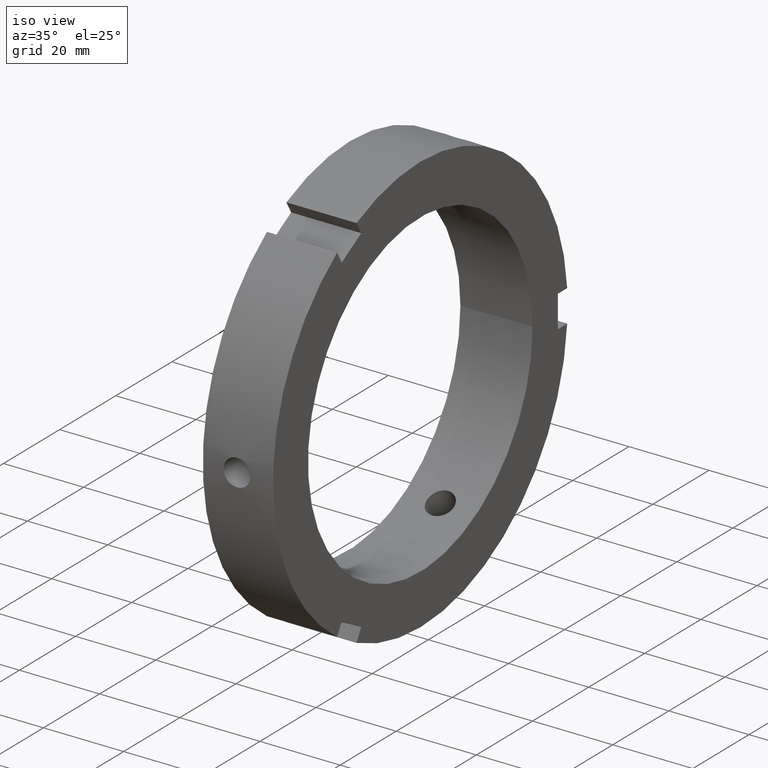
[diagram: clean part render]
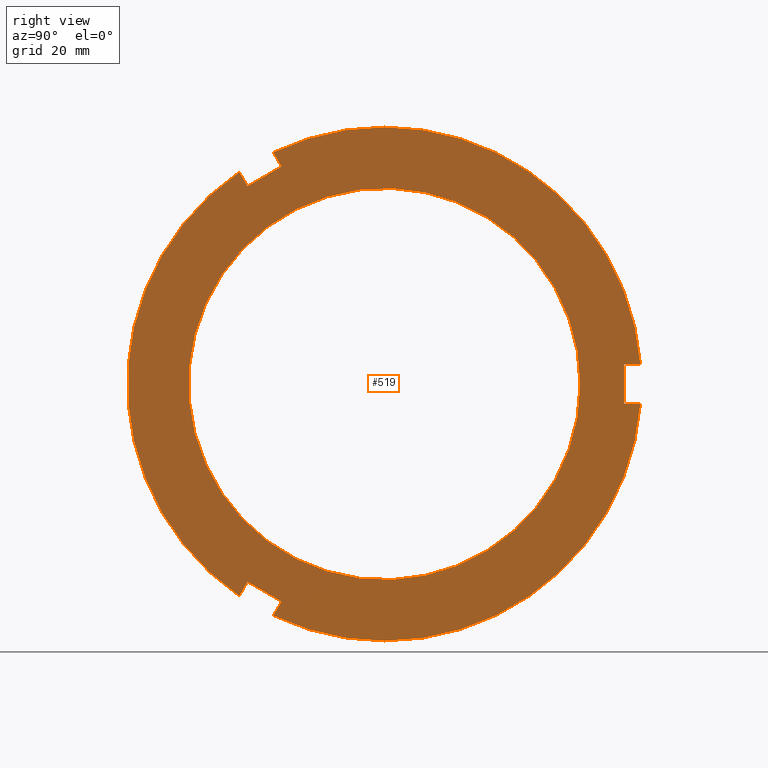
[diagram: tour spotlight — one face highlighted and labeled with its STEP entity id]
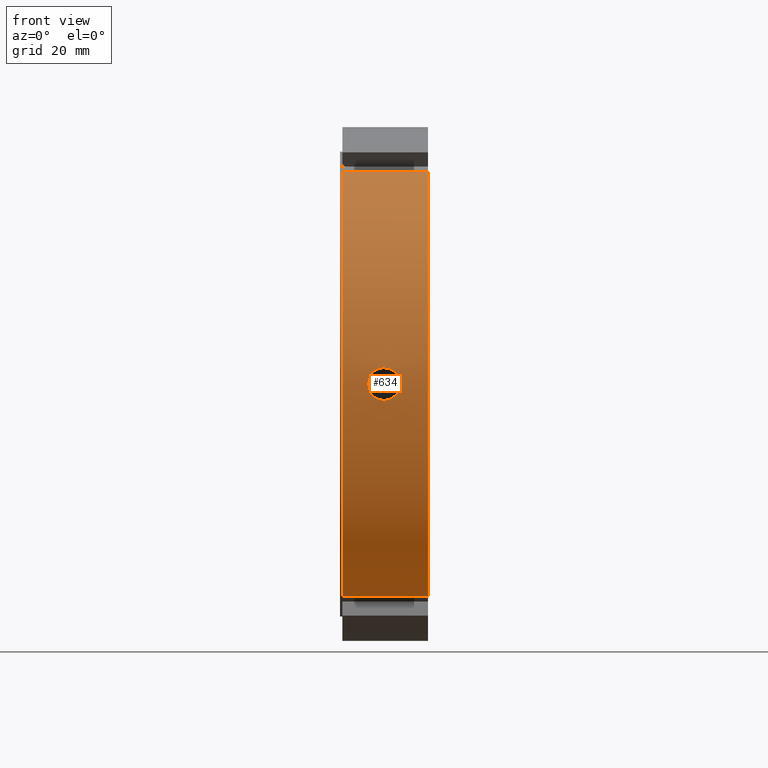
[diagram: tour spotlight — one face highlighted and labeled with its STEP entity id]
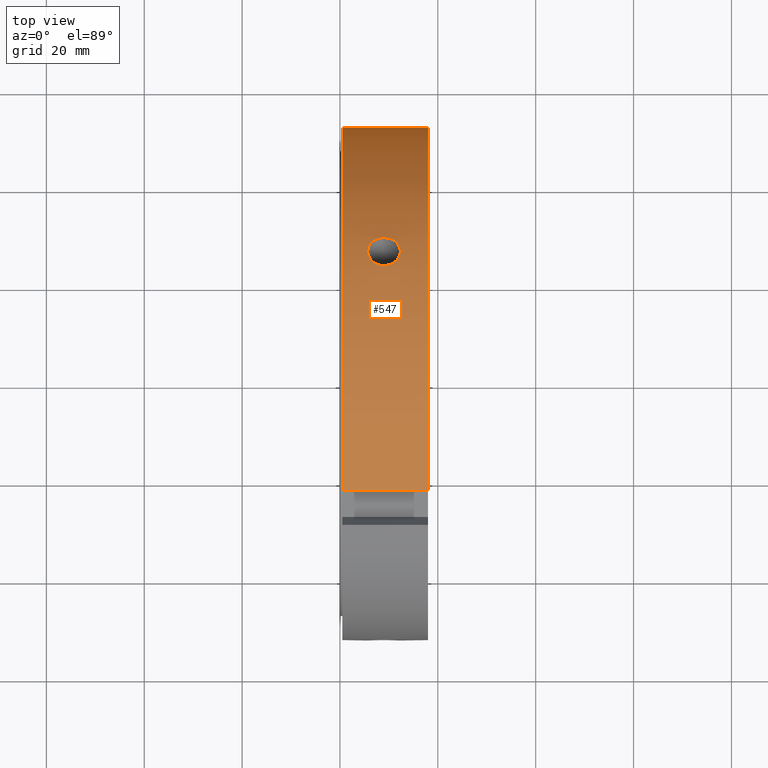
[diagram: tour spotlight — one face highlighted and labeled with its STEP entity id]
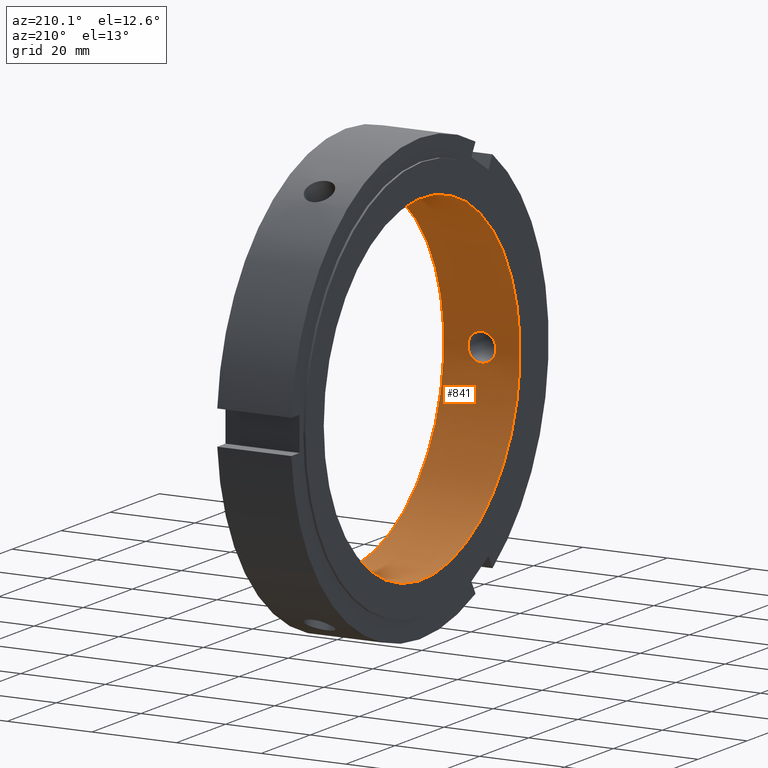
[diagram: tour spotlight — one face highlighted and labeled with its STEP entity id]
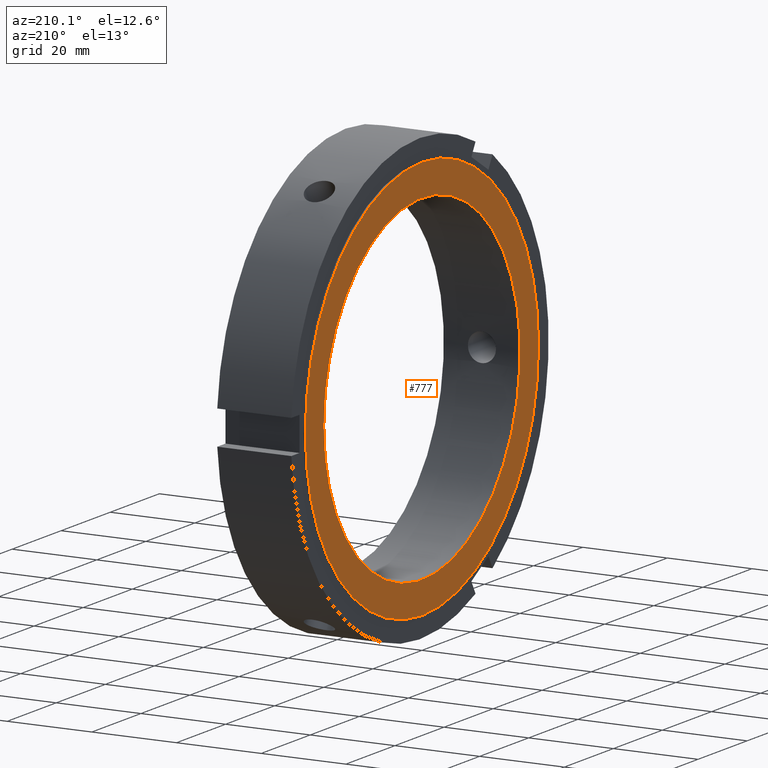
[diagram: tour spotlight — one face highlighted and labeled with its STEP entity id]
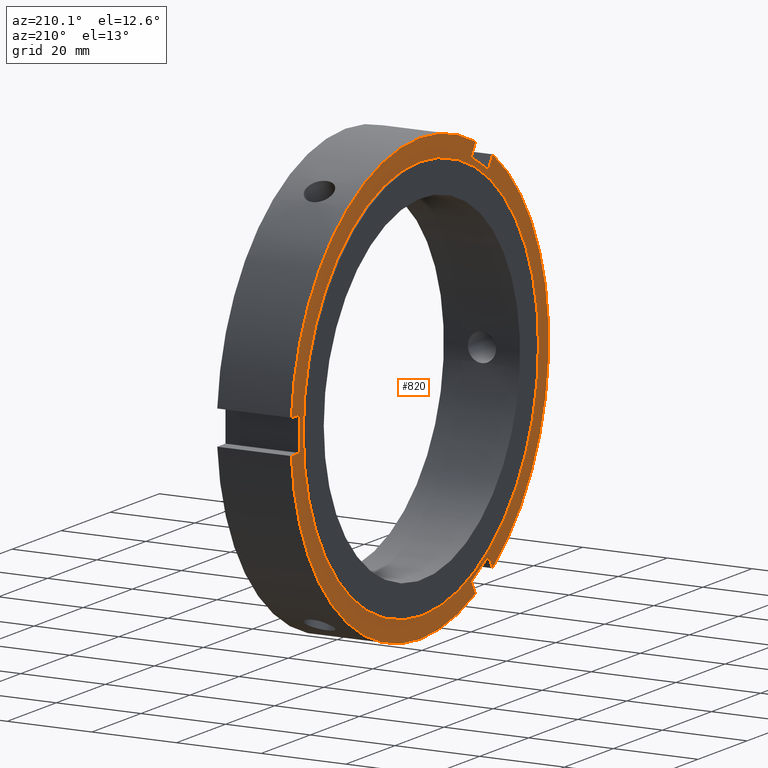
[diagram: tour spotlight — one face highlighted and labeled with its STEP entity id]
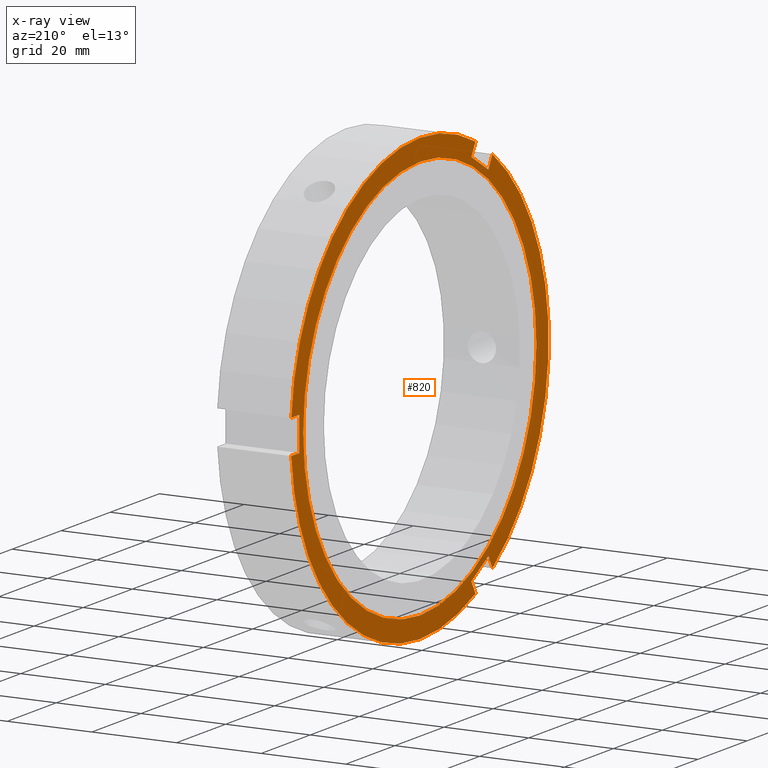
[diagram: x-ray of the same camera — body ghosted, this tour face saturated]
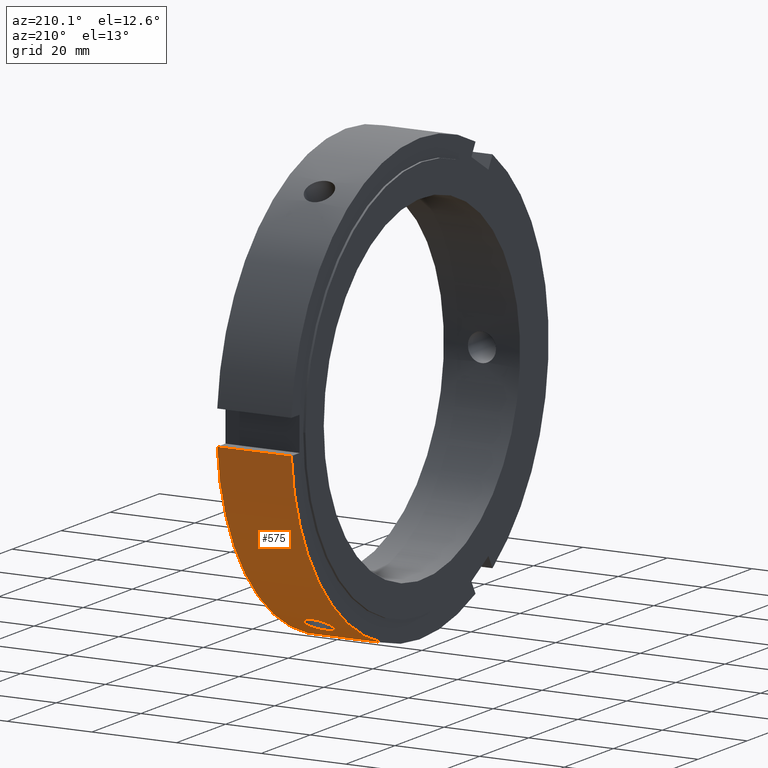
[diagram: tour spotlight — one face highlighted and labeled with its STEP entity id]
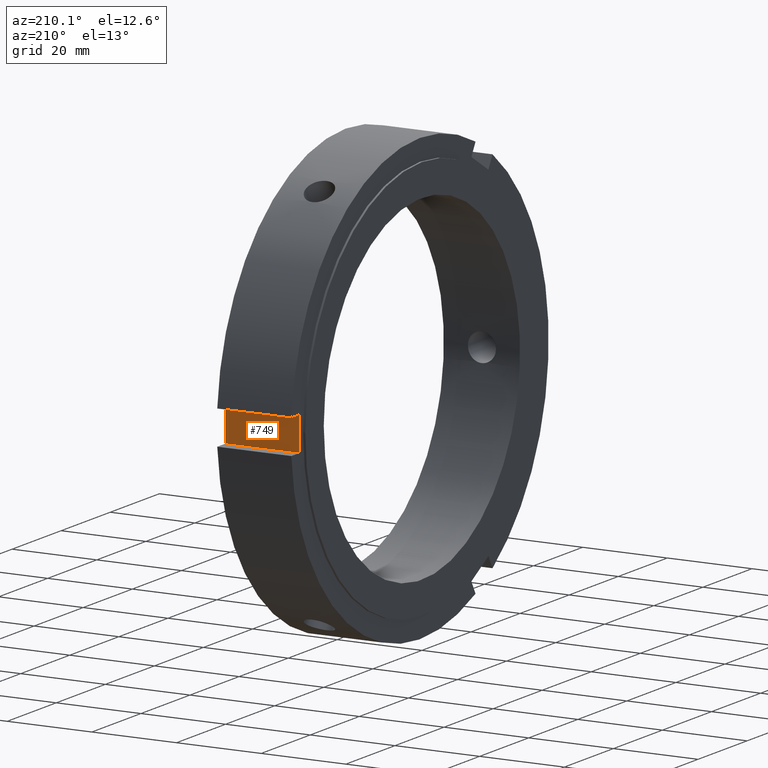
[diagram: tour spotlight — one face highlighted and labeled with its STEP entity id]
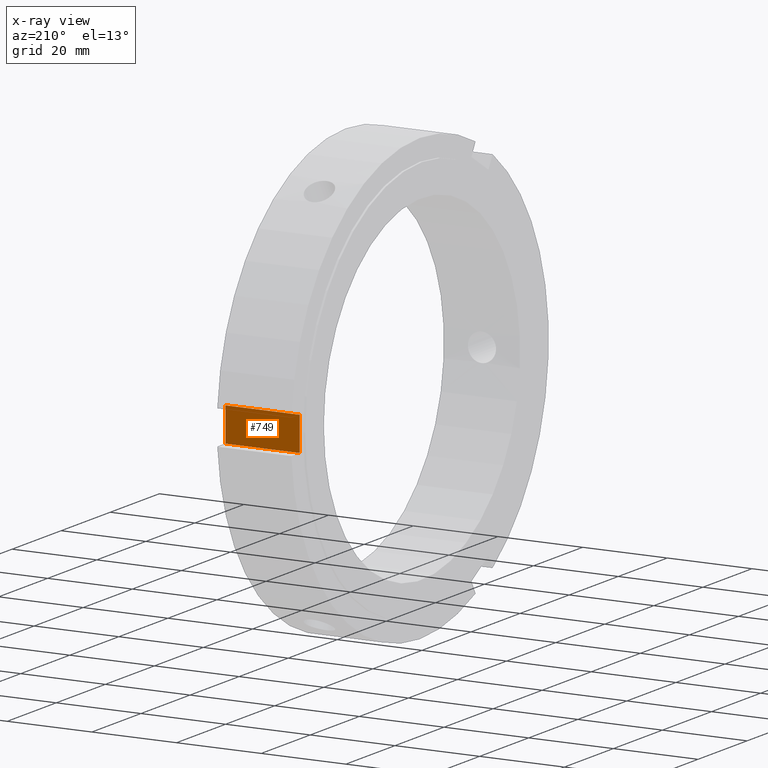
[diagram: x-ray of the same camera — body ghosted, this tour face saturated]
A machine part: a face-by-face anatomy tour. The part has 20 B-rep faces; the first image is the clean iso view, then the 8 largest visible faces are spotlighted one at a time (largest first), each with its STEP entity span.

Face 1 — right view, entity #519. In plain terms, the highlighted planar face has unit normal (1, 0, 0).
Definition (entity closure, byte-faithful):
#83=CARTESIAN_POINT('',(17.999999999999989,-27.964101615137778,-40.435244785437483));
#84=VERTEX_POINT('',#83);
#91=CARTESIAN_POINT('',(17.999999999999989,-29.637800245633240,-43.334175850014070));
#92=VERTEX_POINT('',#91);
#93=CARTESIAN_POINT('',(17.999999999999989,-29.637800245633240,-43.334175850014077));
#94=DIRECTION('',(0.0,0.500000000000000,0.866025403784439));
#95=VECTOR('',#94,3.347397260990930);
#96=LINE('',#93,#95);
#97=EDGE_CURVE('',#92,#84,#96,.T.);
#123=CARTESIAN_POINT('',(17.999999999999989,-22.709597015357733,-47.334175850014063));
#124=VERTEX_POINT('',#123);
#131=CARTESIAN_POINT('',(17.999999999999989,-21.035898384862264,-44.435244785437490));
#132=VERTEX_POINT('',#131);
#133=CARTESIAN_POINT('',(17.999999999999989,-21.035898384862275,-44.435244785437490));
#134=DIRECTION('',(0.0,-0.500000000000001,-0.866025403784438));
#135=VECTOR('',#134,3.347397260990924);
#136=LINE('',#133,#135);
#137=EDGE_CURVE('',#132,#124,#136,.T.);
#160=CARTESIAN_POINT('',(17.999999999999989,-27.964101615137793,-40.435244785437490));
#161=DIRECTION('',(0.0,0.866025403784438,-0.500000000000000));
#162=VECTOR('',#161,8.000000000000007);
#163=LINE('',#160,#162);
#164=EDGE_CURVE('',#84,#132,#163,.T.);
#273=CARTESIAN_POINT('',(17.999999999999989,-21.035898384862239,44.435244785437504));
#274=VERTEX_POINT('',#273);
#281=CARTESIAN_POINT('',(17.999999999999989,-22.709597015357698,47.334175850014091));
#282=VERTEX_POINT('',#281);
#283=CARTESIAN_POINT('',(17.999999999999989,-22.709597015357701,47.334175850014105));
#284=DIRECTION('',(0.0,0.499999999999999,-0.866025403784439));
#285=VECTOR('',#284,3.347397260990936);
#286=LINE('',#283,#285);
#287=EDGE_CURVE('',#282,#274,#286,.T.);
#313=CARTESIAN_POINT('',(17.999999999999989,-29.637800245633205,43.334175850014091));
#314=VERTEX_POINT('',#313);
#321=CARTESIAN_POINT('',(17.999999999999989,-27.964101615137746,40.435244785437504));
#322=VERTEX_POINT('',#321);
#323=CARTESIAN_POINT('',(17.999999999999989,-27.964101615137750,40.435244785437511));
#324=DIRECTION('',(0.0,-0.500000000000000,0.866025403784438));
#325=VECTOR('',#324,3.347397260990914);
#326=LINE('',#323,#325);
#327=EDGE_CURVE('',#322,#314,#326,.T.);
#350=CARTESIAN_POINT('',(17.999999999999989,-21.035898384862243,44.435244785437497));
#351=DIRECTION('',(0.0,-0.866025403784439,-0.499999999999999));
#352=VECTOR('',#351,7.999999999999995);
#353=LINE('',#350,#352);
#354=EDGE_CURVE('',#274,#322,#353,.T.);
#448=CARTESIAN_POINT('',(17.999999999999989,46.250000000000000,0.0));
#449=DIRECTION('',(1.0,0.0,0.0));
#450=DIRECTION('',(0.0,0.0,-1.0));
#451=AXIS2_PLACEMENT_3D('',#448,#449,#450);
#452=PLANE('',#451);
#453=ORIENTED_EDGE('',*,*,#97,.T.);
#454=ORIENTED_EDGE('',*,*,#164,.T.);
#455=ORIENTED_EDGE('',*,*,#137,.T.);
#456=CARTESIAN_POINT('',(17.999999999999989,52.347397260990924,-3.999999999999997));
#457=VERTEX_POINT('',#456);
#458=CARTESIAN_POINT('',(17.999999999999989,0.0,0.0));
#459=DIRECTION('',(1.0,0.0,0.0));
#460=DIRECTION('',(0.0,1.0,0.0));
#461=AXIS2_PLACEMENT_3D('',#458,#459,#460);
#462=CIRCLE('',#461,52.500000000000000);
#463=EDGE_CURVE('',#124,#457,#462,.T.);
#464=ORIENTED_EDGE('',*,*,#463,.T.);
#465=CARTESIAN_POINT('',(17.999999999999989,49.0,-3.999999999999998));
#466=VERTEX_POINT('',#465);
#467=CARTESIAN_POINT('',(17.999999999999989,52.347397260990917,-3.999999999999997));
#468=DIRECTION('',(0.0,-1.0,0.0));
#469=VECTOR('',#468,3.347397260990917);
#470=LINE('',#467,#469);
#471=EDGE_CURVE('',#457,#466,#470,.T.);
#472=ORIENTED_EDGE('',*,*,#471,.T.);
#473=CARTESIAN_POINT('',(17.999999999999989,49.0,3.999999999999998));
#474=VERTEX_POINT('',#473);
#475=CARTESIAN_POINT('',(17.999999999999989,49.0,-3.999999999999997));
#476=DIRECTION('',(0.0,0.0,1.0));
#477=VECTOR('',#476,7.999999999999996);
#478=LINE('',#475,#477);
#479=EDGE_CURVE('',#466,#474,#478,.T.);
#480=ORIENTED_EDGE('',*,*,#479,.T.);
#481=CARTESIAN_POINT('',(17.999999999999989,52.347397260990924,3.999999999999997));
#482=VERTEX_POINT('',#481);
#483=CARTESIAN_POINT('',(17.999999999999989,49.0,3.999999999999998));
#484=DIRECTION('',(0.0,1.0,0.0));
#485=VECTOR('',#484,3.347397260990924);
#486=LINE('',#483,#485);
#487=EDGE_CURVE('',#474,#482,#486,.T.);
#488=ORIENTED_EDGE('',*,*,#487,.T.);
#489=CARTESIAN_POINT('',(17.999999999999989,0.0,0.0));
#490=DIRECTION('',(1.0,0.0,0.0));
#491=DIRECTION('',(0.0,1.0,0.0));
#492=AXIS2_PLACEMENT_3D('',#489,#490,#491);
#493=CIRCLE('',#492,52.500000000000000);
#494=EDGE_CURVE('',#482,#282,#493,.T.);
#495=ORIENTED_EDGE('',*,*,#494,.T.);
#496=ORIENTED_EDGE('',*,*,#287,.T.);
#497=ORIENTED_EDGE('',*,*,#354,.T.);
#498=ORIENTED_EDGE('',*,*,#327,.T.);
#499=CARTESIAN_POINT('',(17.999999999999989,0.0,0.0));
#500=DIRECTION('',(1.0,0.0,0.0));
#501=DIRECTION('',(0.0,1.0,0.0));
#502=AXIS2_PLACEMENT_3D('',#499,#500,#501);
#503=CIRCLE('',#502,52.500000000000000);
#504=EDGE_CURVE('',#314,#92,#503,.T.);
#505=ORIENTED_EDGE('',*,*,#504,.T.);
#506=EDGE_LOOP('',(#453,#454,#455,#464,#472,#480,#488,#495,#496,#497,#498,#505));
#507=FACE_OUTER_BOUND('',#506,.T.);
#508=CARTESIAN_POINT('',(17.999999999999993,40.0,0.0));
#509=VERTEX_POINT('',#508);
#510=CARTESIAN_POINT('',(17.999999999999993,0.0,0.0));
#511=DIRECTION('',(1.0,0.0,0.0));
#512=DIRECTION('',(0.0,1.0,0.0));
#513=AXIS2_PLACEMENT_3D('',#510,#511,#512);
#514=CIRCLE('',#513,40.0);
#515=EDGE_CURVE('',#509,#509,#514,.T.);
#516=ORIENTED_EDGE('',*,*,#515,.F.);
#517=EDGE_LOOP('',(#516));
#518=FACE_BOUND('',#517,.T.);
#519=ADVANCED_FACE('',(#507,#518),#452,.T.);

Face 2 — front view, entity #634. In plain terms, the highlighted cylindrical surface (partial cylindrical patch) has radius 52.5 mm, axis along (1, 0, 0).
Definition (entity closure, byte-faithful):
#75=CARTESIAN_POINT('',(0.499999999999985,-29.637800245633240,-43.334175850014070));
#76=VERTEX_POINT('',#75);
#91=CARTESIAN_POINT('',(17.999999999999989,-29.637800245633240,-43.334175850014070));
#92=VERTEX_POINT('',#91);
#99=CARTESIAN_POINT('',(0.499999999999984,-29.637800245633237,-43.334175850014070));
#100=DIRECTION('',(1.0,0.0,0.0));
#101=VECTOR('',#100,17.500000000000007);
#102=LINE('',#99,#101);
#103=EDGE_CURVE('',#76,#92,#102,.T.);
#303=CARTESIAN_POINT('',(0.499999999999985,-29.637800245633205,43.334175850014091));
#304=VERTEX_POINT('',#303);
#313=CARTESIAN_POINT('',(17.999999999999989,-29.637800245633205,43.334175850014091));
#314=VERTEX_POINT('',#313);
#315=CARTESIAN_POINT('',(17.999999999999989,-29.637800245633205,43.334175850014098));
#316=DIRECTION('',(-1.0,0.0,0.0));
#317=VECTOR('',#316,17.500000000000007);
#318=LINE('',#315,#317);
#319=EDGE_CURVE('',#314,#304,#318,.T.);
#499=CARTESIAN_POINT('',(17.999999999999989,0.0,0.0));
#500=DIRECTION('',(1.0,0.0,0.0));
#501=DIRECTION('',(0.0,1.0,0.0));
#502=AXIS2_PLACEMENT_3D('',#499,#500,#501);
#503=CIRCLE('',#502,52.500000000000000);
#504=EDGE_CURVE('',#314,#92,#503,.T.);
#576=CARTESIAN_POINT('',(9.249999999999988,0.0,0.0));
#577=DIRECTION('',(1.0,0.0,0.0));
#578=DIRECTION('',(0.0,1.0,0.0));
#579=AXIS2_PLACEMENT_3D('',#576,#577,#578);
#580=CYLINDRICAL_SURFACE('',#579,52.500000000000000);
#581=ORIENTED_EDGE('',*,*,#103,.T.);
#582=ORIENTED_EDGE('',*,*,#504,.F.);
#583=ORIENTED_EDGE('',*,*,#319,.T.);
#584=CARTESIAN_POINT('',(0.499999999999985,0.0,0.0));
#585=DIRECTION('',(1.0,0.0,0.0));
#586=DIRECTION('',(0.0,1.0,0.0));
#587=AXIS2_PLACEMENT_3D('',#584,#585,#586);
#588=CIRCLE('',#587,52.500000000000000);
#589=EDGE_CURVE('',#304,#76,#588,.T.);
#590=ORIENTED_EDGE('',*,*,#589,.T.);
#591=EDGE_LOOP('',(#581,#582,#583,#590));
#592=FACE_OUTER_BOUND('',#591,.T.);
#593=CARTESIAN_POINT('',(8.999999999999989,-52.394697706447353,3.323500000000000));
#594=VERTEX_POINT('',#593);
#595=CARTESIAN_POINT('',(8.999999999999988,-52.394697706447353,3.323500000000000));
#596=CARTESIAN_POINT('',(9.417425930708903,-52.394697706447353,3.323500000000000));
#597=CARTESIAN_POINT('',(9.862598977723254,-52.400199538039843,3.240054473667537));
#598=CARTESIAN_POINT('',(10.681407635855217,-52.420072168581548,2.900844430407410));
#599=CARTESIAN_POINT('',(11.055052725244657,-52.434156132892426,2.645086049302315));
#600=CARTESIAN_POINT('',(11.645085888936997,-52.460594422092569,2.055052885609976));
#601=CARTESIAN_POINT('',(11.900844392549848,-52.474666063881187,1.681407724342994));
#602=CARTESIAN_POINT('',(12.240054534789680,-52.494510510176980,0.862598833077800));
#603=CARTESIAN_POINT('',(12.323499999999989,-52.500000000000000,0.417425703804315));
#604=CARTESIAN_POINT('',(12.323499999999989,-52.500000000000000,-0.417425703804314));
#605=CARTESIAN_POINT('',(12.240054534789682,-52.494510510176980,-0.862598833077799));
#606=CARTESIAN_POINT('',(11.900844392549850,-52.474666063881187,-1.681407724342994));
#607=CARTESIAN_POINT('',(11.645085888936997,-52.460594422092569,-2.055052885609975));
#608=CARTESIAN_POINT('',(11.055052725244657,-52.434156132892426,-2.645086049302314));
#609=CARTESIAN_POINT('',(10.681407635855217,-52.420072168581548,-2.900844430407410));
#610=CARTESIAN_POINT('',(9.862598977723254,-52.400199538039843,-3.240054473667537));
#611=CARTESIAN_POINT('',(9.417425930708905,-52.394697706447353,-3.323500000000000));
#612=CARTESIAN_POINT('',(8.582574069291074,-52.394697706447353,-3.323500000000000));
#613=CARTESIAN_POINT('',(8.137401022276723,-52.400199538039843,-3.240054473667537));
#614=CARTESIAN_POINT('',(7.318592364144760,-52.420072168581548,-2.900844430407410));
#615=CARTESIAN_POINT('',(6.944947274755322,-52.434156132892426,-2.645086049302315));
#616=CARTESIAN_POINT('',(6.354914111062984,-52.460594422092569,-2.055052885609976));
#617=CARTESIAN_POINT('',(6.099155607450131,-52.474666063881187,-1.681407724342996));
#618=CARTESIAN_POINT('',(5.759945465210299,-52.494510510176980,-0.862598833077801));
#619=CARTESIAN_POINT('',(5.676499999999988,-52.500000000000000,-0.417425703804315));
#620=CARTESIAN_POINT('',(5.676499999999988,-52.500000000000000,0.417425703804313));
#621=CARTESIAN_POINT('',(5.759945465210300,-52.494510510176980,0.862598833077799));
#622=CARTESIAN_POINT('',(6.099155607450131,-52.474666063881187,1.681407724342994));
#623=CARTESIAN_POINT('',(6.354914111062983,-52.460594422092569,2.055052885609975));
#624=CARTESIAN_POINT('',(6.944947274755322,-52.434156132892426,2.645086049302314));
#625=CARTESIAN_POINT('',(7.318592364144760,-52.420072168581548,2.900844430407410));
#626=CARTESIAN_POINT('',(8.137401022276723,-52.400199538039843,3.240054473667537));
#627=CARTESIAN_POINT('',(8.582574069291075,-52.394697706447353,3.323500000000000));
#628=CARTESIAN_POINT('',(8.999999999999989,-52.394697706447353,3.323500000000000));
#629=B_SPLINE_CURVE_WITH_KNOTS('',3,(#595,#596,#597,#598,#599,#600,#601,#602,#603,#604,#605,#606,#607,#608,#609,#610,#611,#612,#613,#614,#615,#616,#617,#618,#619,#620,#621,#622,#623,#624,#625,#626,#627,#628),.UNSPECIFIED.,.T.,.U.,(4,2,2,2,2,2,2,2,2,2,2,2,2,2,2,2,4),(0.0,0.125227779212675,0.250455558425349,0.375683269566643,0.500910980707938,0.626138691849232,0.751366402990526,0.876594182203201,1.001821961415876,1.127049740628550,1.252277519841225,1.377505230982519,1.502732942123813,1.627960653265108,1.753188364406402,1.878416143619077,2.003643922831751),.UNSPECIFIED.);
#630=EDGE_CURVE('',#594,#594,#629,.T.);
#631=ORIENTED_EDGE('',*,*,#630,.T.);
#632=EDGE_LOOP('',(#631));
#633=FACE_BOUND('',#632,.T.);
#634=ADVANCED_FACE('',(#592,#633),#580,.T.);

Face 3 — top view, entity #547. In plain terms, the highlighted cylindrical surface (partial cylindrical patch) has radius 52.5 mm, axis along (1, 0, 0).
Definition (entity closure, byte-faithful):
#175=CARTESIAN_POINT('',(8.999999999999989,29.075584282701286,43.713389237389663));
#176=VERTEX_POINT('',#175);
#177=CARTESIAN_POINT('',(8.999999999999989,29.075584282701278,43.713389237389663));
#178=CARTESIAN_POINT('',(9.417425930708905,29.075584282701278,43.713389237389663));
#179=CARTESIAN_POINT('',(9.862598977723252,29.006069252861437,43.759876726482332));
#180=CARTESIAN_POINT('',(10.681407635855214,28.722241053450198,43.946691951001526));
#181=CARTESIAN_POINT('',(11.055052725244657,28.507789780337841,44.086768212433270));
#182=CARTESIAN_POINT('',(11.645085888936997,28.010025216105042,44.404681024359363));
#183=CARTESIAN_POINT('',(11.900844392549848,27.693474835341018,44.603690004254766));
#184=CARTESIAN_POINT('',(12.240054534789680,26.994287757808696,45.030280244503572));
#185=CARTESIAN_POINT('',(12.323499999999989,26.611501263687146,45.257620846780860));
#186=CARTESIAN_POINT('',(12.323499999999989,25.888498736312879,45.675046550585172));
#187=CARTESIAN_POINT('',(12.240054534789682,25.500222752368323,45.892879077581370));
#188=CARTESIAN_POINT('',(11.900844392549851,24.781191228540198,46.285097728597762));
#189=CARTESIAN_POINT('',(11.645085888936995,24.450569205987538,46.459733909969344));
#190=CARTESIAN_POINT('',(11.055052725244657,23.926366352554602,46.731854261735599));
#191=CARTESIAN_POINT('',(10.681407635855219,23.697831115131365,46.847536381408936));
#192=CARTESIAN_POINT('',(9.862598977723254,23.394130285178427,46.999931200149874));
#193=CARTESIAN_POINT('',(9.417425930708905,23.319113423746103,47.036889237389659));
#194=CARTESIAN_POINT('',(8.582574069291074,23.319113423746103,47.036889237389659));
#195=CARTESIAN_POINT('',(8.137401022276727,23.394130285178427,46.999931200149874));
#196=CARTESIAN_POINT('',(7.318592364144760,23.697831115131365,46.847536381408936));
#197=CARTESIAN_POINT('',(6.944947274755323,23.926366352554602,46.731854261735599));
#198=CARTESIAN_POINT('',(6.354914111062984,24.450569205987538,46.459733909969344));
#199=CARTESIAN_POINT('',(6.099155607450129,24.781191228540198,46.285097728597762));
#200=CARTESIAN_POINT('',(5.759945465210298,25.500222752368323,45.892879077581370));
#201=CARTESIAN_POINT('',(5.676499999999988,25.888498736312879,45.675046550585172));
#202=CARTESIAN_POINT('',(5.676499999999988,26.611501263687146,45.257620846780860));
#203=CARTESIAN_POINT('',(5.759945465210301,26.994287757808696,45.030280244503572));
#204=CARTESIAN_POINT('',(6.099155607450131,27.693474835341018,44.603690004254766));
#205=CARTESIAN_POINT('',(6.354914111062983,28.010025216105042,44.404681024359363));
#206=CARTESIAN_POINT('',(6.944947274755321,28.507789780337841,44.086768212433270));
#207=CARTESIAN_POINT('',(7.318592364144765,28.722241053450198,43.946691951001526));
#208=CARTESIAN_POINT('',(8.137401022276725,29.006069252861437,43.759876726482332));
#209=CARTESIAN_POINT('',(8.582574069291075,29.075584282701278,43.713389237389663));
#210=CARTESIAN_POINT('',(8.999999999999991,29.075584282701278,43.713389237389663));
#211=B_SPLINE_CURVE_WITH_KNOTS('',3,(#177,#178,#179,#180,#181,#182,#183,#184,#185,#186,#187,#188,#189,#190,#191,#192,#193,#194,#195,#196,#197,#198,#199,#200,#201,#202,#203,#204,#205,#206,#207,#208,#209,#210),.UNSPECIFIED.,.T.,.U.,(4,2,2,2,2,2,2,2,2,2,2,2,2,2,2,2,4),(0.0,0.125227779212675,0.250455558425349,0.375683269566644,0.500910980707938,0.626138691849232,0.751366402990526,0.876594182203201,1.001821961415875,1.127049740628550,1.252277519841225,1.377505230982519,1.502732942123813,1.627960653265107,1.753188364406402,1.878416143619076,2.003643922831751),.UNSPECIFIED.);
#212=EDGE_CURVE('',#176,#176,#211,.T.);
#265=CARTESIAN_POINT('',(0.499999999999985,-22.709597015357698,47.334175850014091));
#266=VERTEX_POINT('',#265);
#281=CARTESIAN_POINT('',(17.999999999999989,-22.709597015357698,47.334175850014091));
#282=VERTEX_POINT('',#281);
#289=CARTESIAN_POINT('',(0.499999999999984,-22.709597015357698,47.334175850014084));
#290=DIRECTION('',(1.0,0.0,0.0));
#291=VECTOR('',#290,17.500000000000007);
#292=LINE('',#289,#291);
#293=EDGE_CURVE('',#266,#282,#292,.T.);
#481=CARTESIAN_POINT('',(17.999999999999989,52.347397260990924,3.999999999999997));
#482=VERTEX_POINT('',#481);
#489=CARTESIAN_POINT('',(17.999999999999989,0.0,0.0));
#490=DIRECTION('',(1.0,0.0,0.0));
#491=DIRECTION('',(0.0,1.0,0.0));
#492=AXIS2_PLACEMENT_3D('',#489,#490,#491);
#493=CIRCLE('',#492,52.500000000000000);
#494=EDGE_CURVE('',#482,#282,#493,.T.);
#520=CARTESIAN_POINT('',(9.249999999999988,0.0,0.0));
#521=DIRECTION('',(1.0,0.0,0.0));
#522=DIRECTION('',(0.0,1.0,0.0));
#523=AXIS2_PLACEMENT_3D('',#520,#521,#522);
#524=CYLINDRICAL_SURFACE('',#523,52.500000000000000);
#525=ORIENTED_EDGE('',*,*,#293,.T.);
#526=ORIENTED_EDGE('',*,*,#494,.F.);
#527=CARTESIAN_POINT('',(0.499999999999985,52.347397260990924,3.999999999999997));
#528=VERTEX_POINT('',#527);
#529=CARTESIAN_POINT('',(17.999999999999989,52.347397260990924,3.999999999999997));
#530=DIRECTION('',(-1.0,0.0,0.0));
#531=VECTOR('',#530,17.500000000000007);
#532=LINE('',#529,#531);
#533=EDGE_CURVE('',#482,#528,#532,.T.);
#534=ORIENTED_EDGE('',*,*,#533,.T.);
#535=CARTESIAN_POINT('',(0.499999999999985,0.0,0.0));
#536=DIRECTION('',(1.0,0.0,0.0));
#537=DIRECTION('',(0.0,1.0,0.0));
#538=AXIS2_PLACEMENT_3D('',#535,#536,#537);
#539=CIRCLE('',#538,52.500000000000000);
#540=EDGE_CURVE('',#528,#266,#539,.T.);
#541=ORIENTED_EDGE('',*,*,#540,.T.);
#542=EDGE_LOOP('',(#525,#526,#534,#541));
#543=FACE_OUTER_BOUND('',#542,.T.);
#544=ORIENTED_EDGE('',*,*,#212,.T.);
#545=EDGE_LOOP('',(#544));
#546=FACE_BOUND('',#545,.T.);
#547=ADVANCED_FACE('',(#543,#546),#524,.T.);

Face 4 — auxiliary view, entity #841. In plain terms, the highlighted cylindrical surface (bore or boss wall) has radius 40 mm, axis along (1, 0, 0).
Definition (entity closure, byte-faithful):
#216=CARTESIAN_POINT('',(8.999999999999989,22.809080542956856,32.859486374331944));
#217=VERTEX_POINT('',#216);
#218=CARTESIAN_POINT('',(8.999999999999988,22.809080542956846,32.859486374331951));
#219=CARTESIAN_POINT('',(8.582487027716674,22.809080542956846,32.859486374331951));
#220=CARTESIAN_POINT('',(8.137276722090178,22.740402738285255,32.907491912633816));
#221=CARTESIAN_POINT('',(7.318492188768378,22.459674898646568,33.099727250237578));
#222=CARTESIAN_POINT('',(6.944901552800731,22.247444595132890,33.243623722648344));
#223=CARTESIAN_POINT('',(6.354960149762096,21.753900381030906,33.568662874119326));
#224=CARTESIAN_POINT('',(6.099214709197733,21.439598689076899,33.771458068242325));
#225=CARTESIAN_POINT('',(5.759979316910330,20.743536334260583,34.203413168140884));
#226=CARTESIAN_POINT('',(5.676499999999987,20.361576255563296,34.432260002895482));
#227=CARTESIAN_POINT('',(5.676499999999990,19.638423744436690,34.849772299859588));
#228=CARTESIAN_POINT('',(5.759979316910338,19.249256532614908,35.066136013865638));
#229=CARTESIAN_POINT('',(6.099214709197750,18.527141265400356,35.452966145805313));
#230=CARTESIAN_POINT('',(6.354960149762094,18.194364629547422,35.623761798428404));
#231=CARTESIAN_POINT('',(6.944901552800731,17.666100360098024,35.888664049996059));
#232=CARTESIAN_POINT('',(7.318492188768380,17.435367207718507,36.000512648086399));
#233=CARTESIAN_POINT('',(8.137276722090178,17.128522602029236,36.147512419961153));
#234=CARTESIAN_POINT('',(8.582487027716677,17.052609684001673,36.182986374331939));
#235=CARTESIAN_POINT('',(9.417512972283301,17.052609684001673,36.182986374331939));
#236=CARTESIAN_POINT('',(9.862723277909801,17.128522602029232,36.147512419961153));
#237=CARTESIAN_POINT('',(10.681507811231601,17.435367207718507,36.000512648086399));
#238=CARTESIAN_POINT('',(11.055098447199249,17.666100360098024,35.888664049996059));
#239=CARTESIAN_POINT('',(11.645039850237884,18.194364629547422,35.623761798428404));
#240=CARTESIAN_POINT('',(11.900785290802228,18.527141265400353,35.452966145805313));
#241=CARTESIAN_POINT('',(12.240020683089639,19.249256532614901,35.066136013865638));
#242=CARTESIAN_POINT('',(12.323499999999989,19.638423744436690,34.849772299859588));
#243=CARTESIAN_POINT('',(12.323499999999989,20.361576255563296,34.432260002895482));
#244=CARTESIAN_POINT('',(12.240020683089650,20.743536334260583,34.203413168140884));
#245=CARTESIAN_POINT('',(11.900785290802245,21.439598689076899,33.771458068242325));
#246=CARTESIAN_POINT('',(11.645039850237882,21.753900381030906,33.568662874119326));
#247=CARTESIAN_POINT('',(11.055098447199248,22.247444595132890,33.243623722648337));
#248=CARTESIAN_POINT('',(10.681507811231603,22.459674898646568,33.099727250237578));
#249=CARTESIAN_POINT('',(9.862723277909801,22.740402738285255,32.907491912633816));
#250=CARTESIAN_POINT('',(9.417512972283303,22.809080542956849,32.859486374331951));
#251=CARTESIAN_POINT('',(8.999999999999989,22.809080542956849,32.859486374331951));
#252=B_SPLINE_CURVE_WITH_KNOTS('',3,(#218,#219,#220,#221,#222,#223,#224,#225,#226,#227,#228,#229,#230,#231,#232,#233,#234,#235,#236,#237,#238,#239,#240,#241,#242,#243,#244,#245,#246,#247,#248,#249,#250,#251),.UNSPECIFIED.,.T.,.U.,(4,2,2,2,2,2,2,2,2,2,2,2,2,2,2,2,4),(0.0,0.125253891684994,0.250507783369988,0.375761472459218,0.501015161548448,0.626268850637678,0.751522539726908,0.876776431411902,1.002030323096895,1.127284214781889,1.252538106466883,1.377791795556113,1.503045484645343,1.628299173734573,1.753552862823803,1.878806754508797,2.004060646193791),.UNSPECIFIED.);
#253=EDGE_CURVE('',#217,#217,#252,.T.);
#406=CARTESIAN_POINT('',(8.999999999999989,17.052609684001666,-36.182986374331961));
#407=VERTEX_POINT('',#406);
#408=CARTESIAN_POINT('',(8.999999999999989,17.052609684001670,-36.182986374331968));
#409=CARTESIAN_POINT('',(8.582487027716677,17.052609684001670,-36.182986374331968));
#410=CARTESIAN_POINT('',(8.137276722090180,17.128522602029225,-36.147512419961153));
#411=CARTESIAN_POINT('',(7.318492188768381,17.435367207718503,-36.000512648086399));
#412=CARTESIAN_POINT('',(6.944901552800731,17.666100360098032,-35.888664049996081));
#413=CARTESIAN_POINT('',(6.354960149762096,18.194364629547430,-35.623761798428426));
#414=CARTESIAN_POINT('',(6.099214709197744,18.527141265400342,-35.452966145805320));
#415=CARTESIAN_POINT('',(5.759979316910336,19.249256532614893,-35.066136013865645));
#416=CARTESIAN_POINT('',(5.676499999999988,19.638423744436686,-34.849772299859595));
#417=CARTESIAN_POINT('',(5.676499999999988,20.361576255563293,-34.432260002895497));
#418=CARTESIAN_POINT('',(5.759979316910337,20.743536334260572,-34.203413168140891));
#419=CARTESIAN_POINT('',(6.099214709197743,21.439598689076892,-33.771458068242332));
#420=CARTESIAN_POINT('',(6.354960149762096,21.753900381030906,-33.568662874119333));
#421=CARTESIAN_POINT('',(6.944901552800733,22.247444595132890,-33.243623722648358));
#422=CARTESIAN_POINT('',(7.318492188768379,22.459674898646561,-33.099727250237578));
#423=CARTESIAN_POINT('',(8.137276722090178,22.740402738285251,-32.907491912633823));
#424=CARTESIAN_POINT('',(8.582487027716677,22.809080542956835,-32.859486374331958));
#425=CARTESIAN_POINT('',(9.417512972283301,22.809080542956835,-32.859486374331958));
#426=CARTESIAN_POINT('',(9.862723277909801,22.740402738285248,-32.907491912633823));
#427=CARTESIAN_POINT('',(10.681507811231603,22.459674898646558,-33.099727250237578));
#428=CARTESIAN_POINT('',(11.055098447199248,22.247444595132890,-33.243623722648358));
#429=CARTESIAN_POINT('',(11.645039850237882,21.753900381030906,-33.568662874119333));
#430=CARTESIAN_POINT('',(11.900785290802238,21.439598689076895,-33.771458068242332));
#431=CARTESIAN_POINT('',(12.240020683089647,20.743536334260575,-34.203413168140891));
#432=CARTESIAN_POINT('',(12.323499999999989,20.361576255563293,-34.432260002895497));
#433=CARTESIAN_POINT('',(12.323499999999989,19.638423744436686,-34.849772299859595));
#434=CARTESIAN_POINT('',(12.240020683089643,19.249256532614897,-35.066136013865645));
#435=CARTESIAN_POINT('',(11.900785290802238,18.527141265400349,-35.452966145805320));
#436=CARTESIAN_POINT('',(11.645039850237882,18.194364629547430,-35.623761798428426));
#437=CARTESIAN_POINT('',(11.055098447199248,17.666100360098032,-35.888664049996081));
#438=CARTESIAN_POINT('',(10.681507811231597,17.435367207718500,-36.000512648086399));
#439=CARTESIAN_POINT('',(9.862723277909796,17.128522602029221,-36.147512419961153));
#440=CARTESIAN_POINT('',(9.417512972283303,17.052609684001666,-36.182986374331961));
#441=CARTESIAN_POINT('',(8.999999999999989,17.052609684001666,-36.182986374331961));
#442=B_SPLINE_CURVE_WITH_KNOTS('',3,(#408,#409,#410,#411,#412,#413,#414,#415,#416,#417,#418,#419,#420,#421,#422,#423,#424,#425,#426,#427,#428,#429,#430,#431,#432,#433,#434,#435,#436,#437,#438,#439,#440,#441),.UNSPECIFIED.,.T.,.U.,(4,2,2,2,2,2,2,2,2,2,2,2,2,2,2,2,4),(0.0,0.125253891684994,0.250507783369988,0.375761472459218,0.501015161548448,0.626268850637678,0.751522539726908,0.876776431411902,1.002030323096896,1.127284214781890,1.252538106466883,1.377791795556114,1.503045484645344,1.628299173734574,1.753552862823804,1.878806754508797,2.004060646193791),.UNSPECIFIED.);
#443=EDGE_CURVE('',#407,#407,#442,.T.);
#508=CARTESIAN_POINT('',(17.999999999999993,40.0,0.0));
#509=VERTEX_POINT('',#508);
#510=CARTESIAN_POINT('',(17.999999999999993,0.0,0.0));
#511=DIRECTION('',(1.0,0.0,0.0));
#512=DIRECTION('',(0.0,1.0,0.0));
#513=AXIS2_PLACEMENT_3D('',#510,#511,#512);
#514=CIRCLE('',#513,40.0);
#515=EDGE_CURVE('',#509,#509,#514,.T.);
#643=CARTESIAN_POINT('',(8.999999999999989,-39.861690226958515,3.323500000000000));
#644=VERTEX_POINT('',#643);
#645=CARTESIAN_POINT('',(8.999999999999988,-39.861690226958515,3.323500000000000));
#646=CARTESIAN_POINT('',(8.582487027716676,-39.861690226958515,3.323500000000000));
#647=CARTESIAN_POINT('',(8.137276722090176,-39.868925340314483,3.240020507327328));
#648=CARTESIAN_POINT('',(7.318492188768380,-39.895042106365068,2.900785397848822));
#649=CARTESIAN_POINT('',(6.944901552800731,-39.913544955230932,2.645040327347723));
#650=CARTESIAN_POINT('',(6.354960149762094,-39.948265010578353,2.055098924309087));
#651=CARTESIAN_POINT('',(6.099214709197743,-39.966739954477262,1.681508077562981));
#652=CARTESIAN_POINT('',(5.759979316910334,-39.992792866875490,0.862722845724754));
#653=CARTESIAN_POINT('',(5.676499999999988,-40.0,0.417512296964101));
#654=CARTESIAN_POINT('',(5.676499999999988,-40.0,-0.417512296964101));
#655=CARTESIAN_POINT('',(5.759979316910334,-39.992792866875490,-0.862722845724754));
#656=CARTESIAN_POINT('',(6.099214709197743,-39.966739954477262,-1.681508077562982));
#657=CARTESIAN_POINT('',(6.354960149762094,-39.948265010578353,-2.055098924309087));
#658=CARTESIAN_POINT('',(6.944901552800731,-39.913544955230932,-2.645040327347723));
#659=CARTESIAN_POINT('',(7.318492188768380,-39.895042106365068,-2.900785397848822));
#660=CARTESIAN_POINT('',(8.137276722090176,-39.868925340314483,-3.240020507327328));
#661=CARTESIAN_POINT('',(8.582487027716677,-39.861690226958515,-3.323500000000000));
#662=CARTESIAN_POINT('',(9.417512972283301,-39.861690226958515,-3.323500000000000));
#663=CARTESIAN_POINT('',(9.862723277909801,-39.868925340314483,-3.240020507327328));
#664=CARTESIAN_POINT('',(10.681507811231601,-39.895042106365068,-2.900785397848820));
#665=CARTESIAN_POINT('',(11.055098447199249,-39.913544955230932,-2.645040327347723));
#666=CARTESIAN_POINT('',(11.645039850237884,-39.948265010578353,-2.055098924309088));
#667=CARTESIAN_POINT('',(11.900785290802233,-39.966739954477262,-1.681508077562982));
#668=CARTESIAN_POINT('',(12.240020683089643,-39.992792866875490,-0.862722845724754));
#669=CARTESIAN_POINT('',(12.323499999999989,-40.0,-0.417512296964101));
#670=CARTESIAN_POINT('',(12.323499999999989,-40.0,0.417512296964100));
#671=CARTESIAN_POINT('',(12.240020683089643,-39.992792866875490,0.862722845724754));
#672=CARTESIAN_POINT('',(11.900785290802233,-39.966739954477262,1.681508077562981));
#673=CARTESIAN_POINT('',(11.645039850237884,-39.948265010578353,2.055098924309087));
#674=CARTESIAN_POINT('',(11.055098447199248,-39.913544955230932,2.645040327347723));
#675=CARTESIAN_POINT('',(10.681507811231601,-39.895042106365068,2.900785397848820));
#676=CARTESIAN_POINT('',(9.862723277909801,-39.868925340314483,3.240020507327328));
#677=CARTESIAN_POINT('',(9.417512972283301,-39.861690226958515,3.323500000000000));
#678=CARTESIAN_POINT('',(8.999999999999989,-39.861690226958515,3.323500000000000));
#679=B_SPLINE_CURVE_WITH_KNOTS('',3,(#645,#646,#647,#648,#649,#650,#651,#652,#653,#654,#655,#656,#657,#658,#659,#660,#661,#662,#663,#664,#665,#666,#667,#668,#669,#670,#671,#672,#673,#674,#675,#676,#677,#678),.UNSPECIFIED.,.T.,.U.,(4,2,2,2,2,2,2,2,2,2,2,2,2,2,2,2,4),(0.0,0.125253891684994,0.250507783369988,0.375761472459218,0.501015161548448,0.626268850637678,0.751522539726909,0.876776431411902,1.002030323096896,1.127284214781890,1.252538106466884,1.377791795556114,1.503045484645344,1.628299173734574,1.753552862823804,1.878806754508798,2.004060646193792),.UNSPECIFIED.);
#680=EDGE_CURVE('',#644,#644,#679,.T.);
#766=CARTESIAN_POINT('',(-1.135244E-014,40.0,0.0));
#767=VERTEX_POINT('',#766);
#768=CARTESIAN_POINT('',(-1.135377E-014,0.0,0.0));
#769=DIRECTION('',(1.0,0.0,0.0));
#770=DIRECTION('',(0.0,1.0,0.0));
#771=AXIS2_PLACEMENT_3D('',#768,#769,#770);
#772=CIRCLE('',#771,40.0);
#773=EDGE_CURVE('',#767,#767,#772,.T.);
#821=CARTESIAN_POINT('',(8.999999999999989,0.0,0.0));
#822=DIRECTION('',(1.0,0.0,0.0));
#823=DIRECTION('',(0.0,1.0,0.0));
#824=AXIS2_PLACEMENT_3D('',#821,#822,#823);
#825=CYLINDRICAL_SURFACE('',#824,40.0);
#826=ORIENTED_EDGE('',*,*,#773,.F.);
#827=EDGE_LOOP('',(#826));
#828=FACE_OUTER_BOUND('',#827,.T.);
#829=ORIENTED_EDGE('',*,*,#253,.T.);
#830=EDGE_LOOP('',(#829));
#831=FACE_BOUND('',#830,.T.);
#832=ORIENTED_EDGE('',*,*,#443,.T.);
#833=EDGE_LOOP('',(#832));
#834=FACE_BOUND('',#833,.T.);
#835=ORIENTED_EDGE('',*,*,#680,.T.);
#836=EDGE_LOOP('',(#835));
#837=FACE_BOUND('',#836,.T.);
#838=ORIENTED_EDGE('',*,*,#515,.T.);
#839=EDGE_LOOP('',(#838));
#840=FACE_BOUND('',#839,.T.);
#841=ADVANCED_FACE('',(#828,#831,#834,#837,#840),#825,.F.);

Face 5 — auxiliary view, entity #777. In plain terms, the highlighted planar face has unit normal (-1, 0, 0).
Definition (entity closure, byte-faithful):
#750=CARTESIAN_POINT('',(-1.233756E-014,43.750000000000000,0.0));
#751=DIRECTION('',(-1.0,0.0,0.0));
#752=DIRECTION('',(0.0,0.0,1.0));
#753=AXIS2_PLACEMENT_3D('',#750,#751,#752);
#754=PLANE('',#753);
#755=CARTESIAN_POINT('',(-1.332268E-014,47.500000000000000,0.0));
#756=VERTEX_POINT('',#755);
#757=CARTESIAN_POINT('',(-1.332268E-014,0.0,0.0));
#758=DIRECTION('',(1.0,0.0,0.0));
#759=DIRECTION('',(0.0,1.0,0.0));
#760=AXIS2_PLACEMENT_3D('',#757,#758,#759);
#761=CIRCLE('',#760,47.500000000000000);
#762=EDGE_CURVE('',#756,#756,#761,.T.);
#763=ORIENTED_EDGE('',*,*,#762,.F.);
#764=EDGE_LOOP('',(#763));
#765=FACE_OUTER_BOUND('',#764,.T.);
#766=CARTESIAN_POINT('',(-1.135244E-014,40.0,0.0));
#767=VERTEX_POINT('',#766);
#768=CARTESIAN_POINT('',(-1.135377E-014,0.0,0.0));
#769=DIRECTION('',(1.0,0.0,0.0));
#770=DIRECTION('',(0.0,1.0,0.0));
#771=AXIS2_PLACEMENT_3D('',#768,#769,#770);
#772=CIRCLE('',#771,40.0);
#773=EDGE_CURVE('',#767,#767,#772,.T.);
#774=ORIENTED_EDGE('',*,*,#773,.T.);
#775=EDGE_LOOP('',(#774));
#776=FACE_BOUND('',#775,.T.);
#777=ADVANCED_FACE('',(#765,#776),#754,.T.);

Face 6 — auxiliary view, entity #820. An x-ray twin of the same camera follows (body ghosted, this face saturated) — the face is partly hidden behind the body. In plain terms, the highlighted planar face has unit normal (-1, 0, 0).
Definition (entity closure, byte-faithful):
#73=CARTESIAN_POINT('',(0.499999999999985,-27.964101615137778,-40.435244785437483));
#74=VERTEX_POINT('',#73);
#75=CARTESIAN_POINT('',(0.499999999999985,-29.637800245633240,-43.334175850014070));
#76=VERTEX_POINT('',#75);
#77=CARTESIAN_POINT('',(0.499999999999984,-27.964101615137778,-40.435244785437490));
#78=DIRECTION('',(0.0,-0.500000000000001,-0.866025403784438));
#79=VECTOR('',#78,3.347397260990924);
#80=LINE('',#77,#79);
#81=EDGE_CURVE('',#74,#76,#80,.T.);
#113=CARTESIAN_POINT('',(0.499999999999985,-22.709597015357733,-47.334175850014063));
#114=VERTEX_POINT('',#113);
#115=CARTESIAN_POINT('',(0.499999999999985,-21.035898384862264,-44.435244785437490));
#116=VERTEX_POINT('',#115);
#117=CARTESIAN_POINT('',(0.499999999999985,-22.709597015357740,-47.334175850014077));
#118=DIRECTION('',(0.0,0.500000000000000,0.866025403784438));
#119=VECTOR('',#118,3.347397260990922);
#120=LINE('',#117,#119);
#121=EDGE_CURVE('',#114,#116,#120,.T.);
#153=CARTESIAN_POINT('',(0.499999999999984,-21.035898384862278,-44.435244785437490));
#154=DIRECTION('',(0.0,-0.866025403784439,0.500000000000000));
#155=VECTOR('',#154,8.000000000000004);
#156=LINE('',#153,#155);
#157=EDGE_CURVE('',#116,#74,#156,.T.);
#263=CARTESIAN_POINT('',(0.499999999999985,-21.035898384862239,44.435244785437504));
#264=VERTEX_POINT('',#263);
#265=CARTESIAN_POINT('',(0.499999999999985,-22.709597015357698,47.334175850014091));
#266=VERTEX_POINT('',#265);
#267=CARTESIAN_POINT('',(0.499999999999985,-21.035898384862239,44.435244785437504));
#268=DIRECTION('',(0.0,-0.500000000000000,0.866025403784438));
#269=VECTOR('',#268,3.347397260990914);
#270=LINE('',#267,#269);
#271=EDGE_CURVE('',#264,#266,#270,.T.);
#303=CARTESIAN_POINT('',(0.499999999999985,-29.637800245633205,43.334175850014091));
#304=VERTEX_POINT('',#303);
#305=CARTESIAN_POINT('',(0.499999999999985,-27.964101615137746,40.435244785437504));
#306=VERTEX_POINT('',#305);
#307=CARTESIAN_POINT('',(0.499999999999985,-29.637800245633208,43.334175850014091));
#308=DIRECTION('',(0.0,0.500000000000000,-0.866025403784438));
#309=VECTOR('',#308,3.347397260990914);
#310=LINE('',#307,#309);
#311=EDGE_CURVE('',#304,#306,#310,.T.);
#343=CARTESIAN_POINT('',(0.499999999999986,-27.964101615137750,40.435244785437504));
#344=DIRECTION('',(0.0,0.866025403784439,0.500000000000000));
#345=VECTOR('',#344,7.999999999999998);
#346=LINE('',#343,#345);
#347=EDGE_CURVE('',#306,#264,#346,.T.);
#527=CARTESIAN_POINT('',(0.499999999999985,52.347397260990924,3.999999999999997));
#528=VERTEX_POINT('',#527);
#535=CARTESIAN_POINT('',(0.499999999999985,0.0,0.0));
#536=DIRECTION('',(1.0,0.0,0.0));
#537=DIRECTION('',(0.0,1.0,0.0));
#538=AXIS2_PLACEMENT_3D('',#535,#536,#537);
#539=CIRCLE('',#538,52.500000000000000);
#540=EDGE_CURVE('',#528,#266,#539,.T.);
#554=CARTESIAN_POINT('',(0.499999999999985,52.347397260990924,-3.999999999999997));
#555=VERTEX_POINT('',#554);
#556=CARTESIAN_POINT('',(0.499999999999985,0.0,0.0));
#557=DIRECTION('',(1.0,0.0,0.0));
#558=DIRECTION('',(0.0,1.0,0.0));
#559=AXIS2_PLACEMENT_3D('',#556,#557,#558);
#560=CIRCLE('',#559,52.500000000000000);
#561=EDGE_CURVE('',#114,#555,#560,.T.);
#584=CARTESIAN_POINT('',(0.499999999999985,0.0,0.0));
#585=DIRECTION('',(1.0,0.0,0.0));
#586=DIRECTION('',(0.0,1.0,0.0));
#587=AXIS2_PLACEMENT_3D('',#584,#585,#586);
#588=CIRCLE('',#587,52.500000000000000);
#589=EDGE_CURVE('',#304,#76,#588,.T.);
#690=CARTESIAN_POINT('',(0.499999999999985,49.0,-3.999999999999998));
#691=VERTEX_POINT('',#690);
#692=CARTESIAN_POINT('',(0.499999999999985,49.0,-3.999999999999998));
#693=DIRECTION('',(0.0,1.0,0.0));
#694=VECTOR('',#693,3.347397260990917);
#695=LINE('',#692,#694);
#696=EDGE_CURVE('',#691,#555,#695,.T.);
#714=CARTESIAN_POINT('',(0.499999999999985,49.0,3.999999999999998));
#715=VERTEX_POINT('',#714);
#716=CARTESIAN_POINT('',(0.499999999999985,52.347397260990924,3.999999999999998));
#717=DIRECTION('',(0.0,-1.0,0.0));
#718=VECTOR('',#717,3.347397260990924);
#719=LINE('',#716,#718);
#720=EDGE_CURVE('',#528,#715,#719,.T.);
#738=CARTESIAN_POINT('',(0.499999999999985,49.0,3.999999999999998));
#739=DIRECTION('',(0.0,0.0,-1.0));
#740=VECTOR('',#739,7.999999999999996);
#741=LINE('',#738,#740);
#742=EDGE_CURVE('',#715,#691,#741,.T.);
#783=CARTESIAN_POINT('',(0.499999999999985,47.500000000000000,0.0));
#784=VERTEX_POINT('',#783);
#785=CARTESIAN_POINT('',(0.499999999999985,0.0,0.0));
#786=DIRECTION('',(1.0,0.0,0.0));
#787=DIRECTION('',(0.0,1.0,0.0));
#788=AXIS2_PLACEMENT_3D('',#785,#786,#787);
#789=CIRCLE('',#788,47.500000000000000);
#790=EDGE_CURVE('',#784,#784,#789,.T.);
#798=CARTESIAN_POINT('',(0.499999999999985,50.0,0.0));
#799=DIRECTION('',(-1.0,0.0,0.0));
#800=DIRECTION('',(0.0,0.0,1.0));
#801=AXIS2_PLACEMENT_3D('',#798,#799,#800);
#802=PLANE('',#801);
#803=ORIENTED_EDGE('',*,*,#81,.T.);
#804=ORIENTED_EDGE('',*,*,#589,.F.);
#805=ORIENTED_EDGE('',*,*,#311,.T.);
#806=ORIENTED_EDGE('',*,*,#347,.T.);
#807=ORIENTED_EDGE('',*,*,#271,.T.);
#808=ORIENTED_EDGE('',*,*,#540,.F.);
#809=ORIENTED_EDGE('',*,*,#720,.T.);
#810=ORIENTED_EDGE('',*,*,#742,.T.);
#811=ORIENTED_EDGE('',*,*,#696,.T.);
#812=ORIENTED_EDGE('',*,*,#561,.F.);
#813=ORIENTED_EDGE('',*,*,#121,.T.);
#814=ORIENTED_EDGE('',*,*,#157,.T.);
#815=EDGE_LOOP('',(#803,#804,#805,#806,#807,#808,#809,#810,#811,#812,#813,#814));
#816=FACE_OUTER_BOUND('',#815,.T.);
#817=ORIENTED_EDGE('',*,*,#790,.T.);
#818=EDGE_LOOP('',(#817));
#819=FACE_BOUND('',#818,.T.);
#820=ADVANCED_FACE('',(#816,#819),#802,.T.);

Face 7 — auxiliary view, entity #575. In plain terms, the highlighted cylindrical surface (partial cylindrical patch) has radius 52.5 mm, axis along (1, 0, 0).
Definition (entity closure, byte-faithful):
#113=CARTESIAN_POINT('',(0.499999999999985,-22.709597015357733,-47.334175850014063));
#114=VERTEX_POINT('',#113);
#123=CARTESIAN_POINT('',(17.999999999999989,-22.709597015357733,-47.334175850014063));
#124=VERTEX_POINT('',#123);
#125=CARTESIAN_POINT('',(17.999999999999989,-22.709597015357730,-47.334175850014063));
#126=DIRECTION('',(-1.0,0.0,0.0));
#127=VECTOR('',#126,17.500000000000007);
#128=LINE('',#125,#127);
#129=EDGE_CURVE('',#124,#114,#128,.T.);
#365=CARTESIAN_POINT('',(8.999999999999989,23.319113423746085,-47.036889237389673));
#366=VERTEX_POINT('',#365);
#367=CARTESIAN_POINT('',(8.999999999999989,23.319113423746085,-47.036889237389673));
#368=CARTESIAN_POINT('',(9.417425930708905,23.319113423746085,-47.036889237389673));
#369=CARTESIAN_POINT('',(9.862598977723255,23.394130285178406,-46.999931200149881));
#370=CARTESIAN_POINT('',(10.681407635855219,23.697831115131343,-46.847536381408943));
#371=CARTESIAN_POINT('',(11.055052725244657,23.926366352554584,-46.731854261735620));
#372=CARTESIAN_POINT('',(11.645085888936993,24.450569205987520,-46.459733909969373));
#373=CARTESIAN_POINT('',(11.900844392549846,24.781191228540163,-46.285097728597783));
#374=CARTESIAN_POINT('',(12.240054534789678,25.500222752368291,-45.892879077581384));
#375=CARTESIAN_POINT('',(12.323499999999989,25.888498736312854,-45.675046550585193));
#376=CARTESIAN_POINT('',(12.323499999999989,26.611501263687121,-45.257620846780867));
#377=CARTESIAN_POINT('',(12.240054534789678,26.994287757808664,-45.030280244503587));
#378=CARTESIAN_POINT('',(11.900844392549850,27.693474835340993,-44.603690004254787));
#379=CARTESIAN_POINT('',(11.645085888936993,28.010025216105021,-44.404681024359398));
#380=CARTESIAN_POINT('',(11.055052725244657,28.507789780337820,-44.086768212433313));
#381=CARTESIAN_POINT('',(10.681407635855216,28.722241053450176,-43.946691951001533));
#382=CARTESIAN_POINT('',(9.862598977723248,29.006069252861412,-43.759876726482346));
#383=CARTESIAN_POINT('',(9.417425930708905,29.075584282701257,-43.713389237389670));
#384=CARTESIAN_POINT('',(8.582574069291074,29.075584282701257,-43.713389237389670));
#385=CARTESIAN_POINT('',(8.137401022276729,29.006069252861415,-43.759876726482332));
#386=CARTESIAN_POINT('',(7.318592364144764,28.722241053450176,-43.946691951001533));
#387=CARTESIAN_POINT('',(6.944947274755323,28.507789780337820,-44.086768212433313));
#388=CARTESIAN_POINT('',(6.354914111062985,28.010025216105021,-44.404681024359398));
#389=CARTESIAN_POINT('',(6.099155607450129,27.693474835340997,-44.603690004254773));
#390=CARTESIAN_POINT('',(5.759945465210299,26.994287757808671,-45.030280244503579));
#391=CARTESIAN_POINT('',(5.676499999999987,26.611501263687121,-45.257620846780867));
#392=CARTESIAN_POINT('',(5.676499999999990,25.888498736312854,-45.675046550585193));
#393=CARTESIAN_POINT('',(5.759945465210301,25.500222752368291,-45.892879077581384));
#394=CARTESIAN_POINT('',(6.099155607450132,24.781191228540163,-46.285097728597783));
#395=CARTESIAN_POINT('',(6.354914111062985,24.450569205987520,-46.459733909969373));
#396=CARTESIAN_POINT('',(6.944947274755324,23.926366352554584,-46.731854261735620));
#397=CARTESIAN_POINT('',(7.318592364144760,23.697831115131343,-46.847536381408943));
#398=CARTESIAN_POINT('',(8.137401022276725,23.394130285178406,-46.999931200149881));
#399=CARTESIAN_POINT('',(8.582574069291075,23.319113423746089,-47.036889237389673));
#400=CARTESIAN_POINT('',(8.999999999999989,23.319113423746089,-47.036889237389673));
#401=B_SPLINE_CURVE_WITH_KNOTS('',3,(#367,#368,#369,#370,#371,#372,#373,#374,#375,#376,#377,#378,#379,#380,#381,#382,#383,#384,#385,#386,#387,#388,#389,#390,#391,#392,#393,#394,#395,#396,#397,#398,#399,#400),.UNSPECIFIED.,.T.,.U.,(4,2,2,2,2,2,2,2,2,2,2,2,2,2,2,2,4),(0.0,0.125227779212675,0.250455558425349,0.375683269566643,0.500910980707937,0.626138691849231,0.751366402990526,0.876594182203201,1.001821961415875,1.127049740628551,1.252277519841225,1.377505230982520,1.502732942123814,1.627960653265108,1.753188364406402,1.878416143619076,2.003643922831751),.UNSPECIFIED.);
#402=EDGE_CURVE('',#366,#366,#401,.T.);
#456=CARTESIAN_POINT('',(17.999999999999989,52.347397260990924,-3.999999999999997));
#457=VERTEX_POINT('',#456);
#458=CARTESIAN_POINT('',(17.999999999999989,0.0,0.0));
#459=DIRECTION('',(1.0,0.0,0.0));
#460=DIRECTION('',(0.0,1.0,0.0));
#461=AXIS2_PLACEMENT_3D('',#458,#459,#460);
#462=CIRCLE('',#461,52.500000000000000);
#463=EDGE_CURVE('',#124,#457,#462,.T.);
#548=CARTESIAN_POINT('',(9.249999999999988,0.0,0.0));
#549=DIRECTION('',(1.0,0.0,0.0));
#550=DIRECTION('',(0.0,1.0,0.0));
#551=AXIS2_PLACEMENT_3D('',#548,#549,#550);
#552=CYLINDRICAL_SURFACE('',#551,52.500000000000000);
#553=ORIENTED_EDGE('',*,*,#129,.T.);
#554=CARTESIAN_POINT('',(0.499999999999985,52.347397260990924,-3.999999999999997));
#555=VERTEX_POINT('',#554);
#556=CARTESIAN_POINT('',(0.499999999999985,0.0,0.0));
#557=DIRECTION('',(1.0,0.0,0.0));
#558=DIRECTION('',(0.0,1.0,0.0));
#559=AXIS2_PLACEMENT_3D('',#556,#557,#558);
#560=CIRCLE('',#559,52.500000000000000);
#561=EDGE_CURVE('',#114,#555,#560,.T.);
#562=ORIENTED_EDGE('',*,*,#561,.T.);
#563=CARTESIAN_POINT('',(0.499999999999984,52.347397260990924,-3.999999999999997));
#564=DIRECTION('',(1.0,0.0,0.0));
#565=VECTOR('',#564,17.500000000000007);
#566=LINE('',#563,#565);
#567=EDGE_CURVE('',#555,#457,#566,.T.);
#568=ORIENTED_EDGE('',*,*,#567,.T.);
#569=ORIENTED_EDGE('',*,*,#463,.F.);
#570=EDGE_LOOP('',(#553,#562,#568,#569));
#571=FACE_OUTER_BOUND('',#570,.T.);
#572=ORIENTED_EDGE('',*,*,#402,.T.);
#573=EDGE_LOOP('',(#572));
#574=FACE_BOUND('',#573,.T.);
#575=ADVANCED_FACE('',(#571,#574),#552,.T.);

Face 8 — auxiliary view, entity #749. An x-ray twin of the same camera follows (body ghosted, this face saturated) — the face is partly hidden behind the body. In plain terms, the highlighted planar face has unit normal (0, -1, 0).
Definition (entity closure, byte-faithful):
#465=CARTESIAN_POINT('',(17.999999999999989,49.0,-3.999999999999998));
#466=VERTEX_POINT('',#465);
#473=CARTESIAN_POINT('',(17.999999999999989,49.0,3.999999999999998));
#474=VERTEX_POINT('',#473);
#475=CARTESIAN_POINT('',(17.999999999999989,49.0,-3.999999999999997));
#476=DIRECTION('',(0.0,0.0,1.0));
#477=VECTOR('',#476,7.999999999999996);
#478=LINE('',#475,#477);
#479=EDGE_CURVE('',#466,#474,#478,.T.);
#690=CARTESIAN_POINT('',(0.499999999999985,49.0,-3.999999999999998));
#691=VERTEX_POINT('',#690);
#698=CARTESIAN_POINT('',(17.999999999999989,49.0,-3.999999999999998));
#699=DIRECTION('',(-1.0,0.0,0.0));
#700=VECTOR('',#699,17.500000000000004);
#701=LINE('',#698,#700);
#702=EDGE_CURVE('',#466,#691,#701,.T.);
#714=CARTESIAN_POINT('',(0.499999999999985,49.0,3.999999999999998));
#715=VERTEX_POINT('',#714);
#724=CARTESIAN_POINT('',(17.999999999999989,49.0,3.999999999999998));
#725=DIRECTION('',(-1.0,0.0,0.0));
#726=VECTOR('',#725,17.500000000000004);
#727=LINE('',#724,#726);
#728=EDGE_CURVE('',#474,#715,#727,.T.);
#733=CARTESIAN_POINT('',(17.999999999999989,49.0,3.999999999999998));
#734=DIRECTION('',(0.0,-1.0,0.0));
#735=DIRECTION('',(0.0,0.0,-1.0));
#736=AXIS2_PLACEMENT_3D('',#733,#734,#735);
#737=PLANE('',#736);
#738=CARTESIAN_POINT('',(0.499999999999985,49.0,3.999999999999998));
#739=DIRECTION('',(0.0,0.0,-1.0));
#740=VECTOR('',#739,7.999999999999996);
#741=LINE('',#738,#740);
#742=EDGE_CURVE('',#715,#691,#741,.T.);
#743=ORIENTED_EDGE('',*,*,#742,.F.);
#744=ORIENTED_EDGE('',*,*,#728,.F.);
#745=ORIENTED_EDGE('',*,*,#479,.F.);
#746=ORIENTED_EDGE('',*,*,#702,.T.);
#747=EDGE_LOOP('',(#743,#744,#745,#746));
#748=FACE_OUTER_BOUND('',#747,.T.);
#749=ADVANCED_FACE('',(#748),#737,.F.);